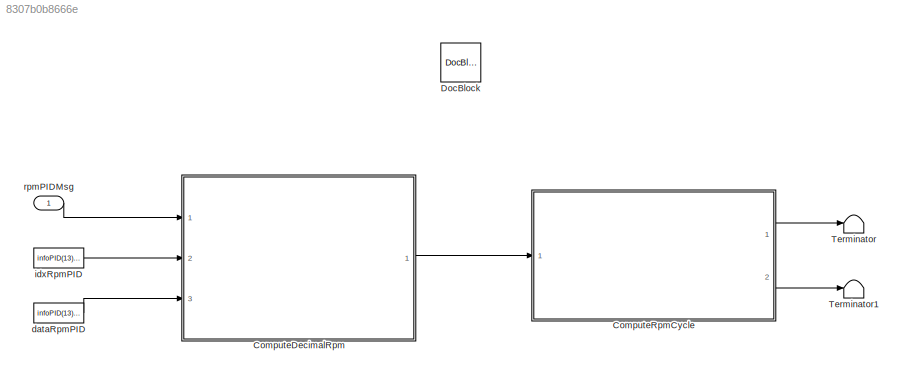
MODEL slx_8307b0b8666e
KIND model
CONFIG AbsTol = auto
CONFIG EnableMultiTasking = off
CONFIG FixedStep = 0.2
CONFIG MaxStep = auto
CONFIG MinStep = auto
CONFIG RelTol = 1e-3
CONFIG SampleTimeConstraint = Unconstrained
CONFIG SolverName = FixedStepAuto
CONFIG StartTime = 0.0
CONFIG StopTime = 10.0
BLOCK [ModelReference] ComputeDecimalRpm
  ModelNameDialog = ConvertPIDTodDec.slx
  ModelReferenceVersion = 1.22
  Ports = [3, 1]
BLOCK [ModelReference] ComputeRpmCycle
  ModelNameDialog = ConvertUnitRpm.slx
  ModelReferenceVersion = 1.12
  Ports = [1, 2]
BLOCK [Reference] DocBlock  REF=simulink/Model-Wide
Utilities/DocBlock
  AttributesFormatString = %<ECoderFlag>
  Ports = []
  SourceBlock = simulink/Model-Wide\nUtilities/DocBlock
  SourceProductBaseCode = SL
  SourceType = DocBlock
  UserDataPersistent = on
BLOCK [Terminator] Terminator
BLOCK [Terminator] Terminator1
BLOCK [Constant] dataRpmPID
  Value = infoPID(13).Data
BLOCK [Constant] idxRpmPID
  Value = infoPID(13).Dec
BLOCK [Inport] rpmPIDMsg
  OutDataTypeStr = double
  PortDimensions = 1
  Unit = rpm
  VarSizeSig = No
LINE ComputeDecimalRpm:1 -> ComputeRpmCycle:1
LINE ComputeRpmCycle:1 -> Terminator:1
LINE ComputeRpmCycle:2 -> Terminator1:1
LINE dataRpmPID:1 -> ComputeDecimalRpm:3
LINE idxRpmPID:1 -> ComputeDecimalRpm:2
LINE rpmPIDMsg:1 -> ComputeDecimalRpm:1
